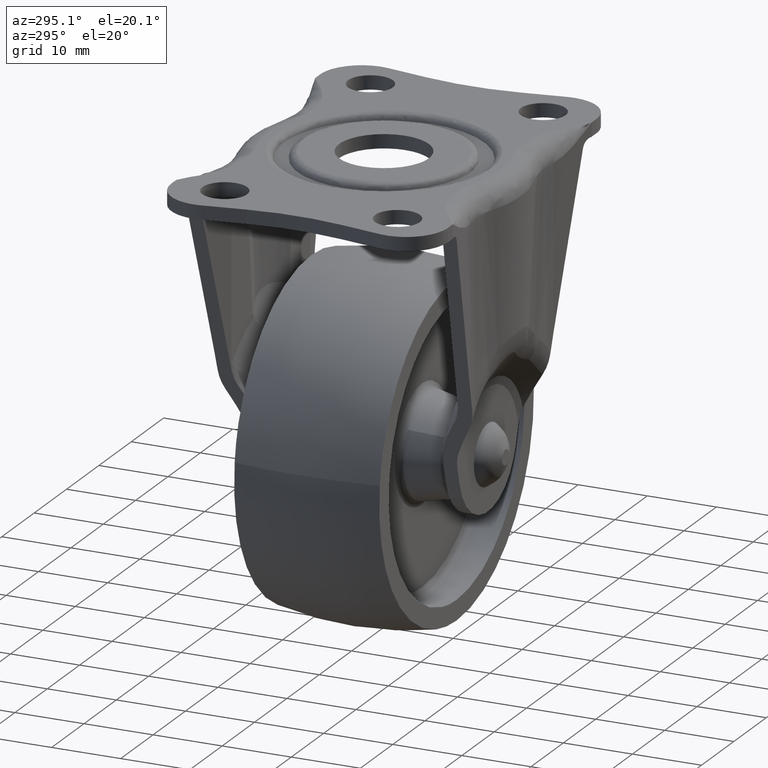
[diagram: clean part render]
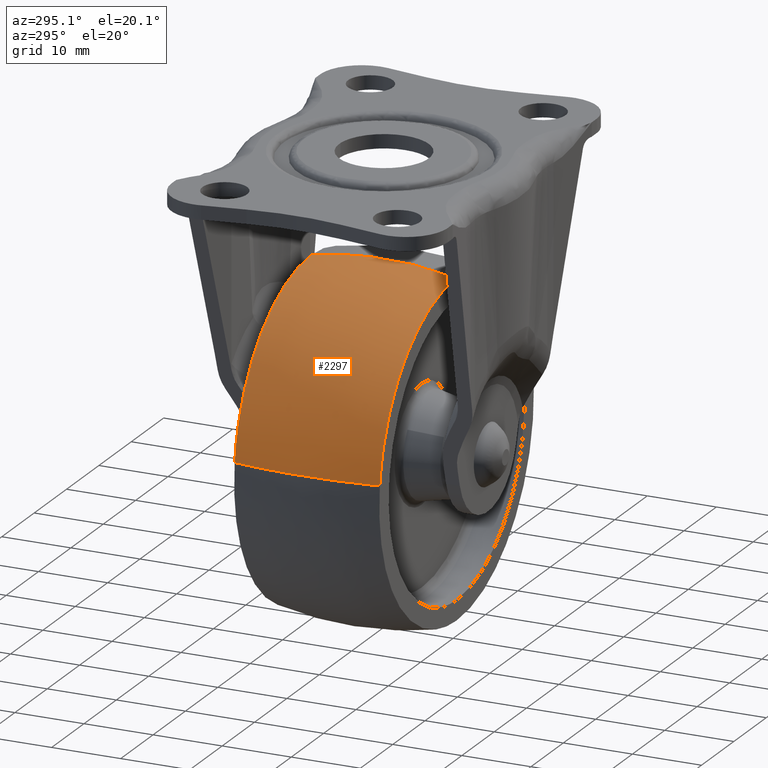
[diagram: same view with one face highlighted and labeled with its STEP entity id]
A machine part, auxiliary view. The second image highlights one B-rep face of the part: STEP entity #2297.
In plain terms, the highlighted face is a freeform B-spline surface patch.
Its self-contained STEP definition (entity closure, byte-faithful):
#2129=CARTESIAN_POINT('',(-23.725320137781459,-10.500002050025209,2.757843099754513));
#2130=VERTEX_POINT('',#2129);
#2148=CARTESIAN_POINT('',(-23.725319611020470,10.500004497779170,2.757843077978822));
#2149=VERTEX_POINT('',#2148);
#2150=CARTESIAN_POINT('',(-23.725320137781456,-10.500002050025213,2.757843099754514));
#2151=CARTESIAN_POINT('',(-24.832794219524438,-5.309194892421730,2.886577774797776));
#2152=CARTESIAN_POINT('',(-24.832794218380336,-7.992791E-015,2.886577784639975));
#2153=CARTESIAN_POINT('',(-24.832794217236238,5.309196158325869,2.886577794482175));
#2154=CARTESIAN_POINT('',(-23.725319611020470,10.500004497779173,2.757843077978822));
#2162=(BOUNDED_CURVE()B_SPLINE_CURVE(2,(#2150,#2151,#2152,#2153,#2154),.UNSPECIFIED.,.F.,.U.)B_SPLINE_CURVE_WITH_KNOTS((3,2,3),(0.396753655747786,0.500000000000000,0.603246368188836),.UNSPECIFIED.)CURVE()GEOMETRIC_REPRESENTATION_ITEM()RATIONAL_B_SPLINE_CURVE((0.914874605605101,0.930414079447641,0.956886118190660,0.930414073310366,0.914874598399761))REPRESENTATION_ITEM(''));
#2163=EDGE_CURVE('',#2130,#2149,#2162,.T.);
#2182=CARTESIAN_POINT('',(0.0,10.499988183043550,23.885071833391070));
#2183=VERTEX_POINT('',#2182);
#2199=CARTESIAN_POINT('',(0.0,-10.499985442855660,23.885072421953151));
#2200=VERTEX_POINT('',#2199);
#2201=CARTESIAN_POINT('',(0.0,-10.499985442855651,23.885072421953158));
#2202=CARTESIAN_POINT('',(0.0,-5.309186303697754,24.999999999999993));
#2203=CARTESIAN_POINT('',(0.0,0.0,25.0));
#2204=CARTESIAN_POINT('',(0.0,5.309187720839631,25.000000000000004));
#2205=CARTESIAN_POINT('',(0.0,10.499988183043543,23.885071833391073));
#2213=(BOUNDED_CURVE()B_SPLINE_CURVE(2,(#2201,#2202,#2203,#2204,#2205),.UNSPECIFIED.,.F.,.U.)B_SPLINE_CURVE_WITH_KNOTS((3,2,3),(0.396753818149599,0.500000000000000,0.603246208646736),.UNSPECIFIED.)CURVE()GEOMETRIC_REPRESENTATION_ITEM()RATIONAL_B_SPLINE_CURVE((0.956095649313844,0.972335268951588,1.0,0.972335261771532,0.956095640884239))REPRESENTATION_ITEM(''));
#2214=EDGE_CURVE('',#2200,#2183,#2213,.T.);
#2234=CARTESIAN_POINT('',(0.153417863439363,-11.553957465630440,23.646747752366782));
#2235=CARTESIAN_POINT('',(0.162197636061821,-5.856228273553618,24.999999999999996));
#2236=CARTESIAN_POINT('',(0.162197636061821,0.0,24.999999999999989));
#2237=CARTESIAN_POINT('',(0.162197636061821,5.856231443781028,25.0));
#2238=CARTESIAN_POINT('',(0.153417854062262,11.553963551000338,23.646746307046641));
#2239=CARTESIAN_POINT('',(0.076812143368140,-11.553957465630436,23.646747752366778));
#2240=CARTESIAN_POINT('',(0.081207936258858,-5.856228273553617,25.0));
#2241=CARTESIAN_POINT('',(0.081207936258858,0.0,24.999999999999996));
#2242=CARTESIAN_POINT('',(0.081207936258858,5.856231443781028,25.000000000000007));
#2243=CARTESIAN_POINT('',(0.076812138673281,11.553963551000338,23.646746307046641));
#2244=CARTESIAN_POINT('',(-21.057232625030807,-11.553957465630443,23.646747752366789));
#2245=CARTESIAN_POINT('',(-22.262292520673601,-5.856228273553620,24.999999999999996));
#2246=CARTESIAN_POINT('',(-22.262292520673586,0.0,24.999999999999996));
#2247=CARTESIAN_POINT('',(-22.262292520673586,5.856231443781029,25.0));
#2248=CARTESIAN_POINT('',(-21.057231337985211,11.553963551000331,23.646746307046634));
#2249=CARTESIAN_POINT('',(-23.497861553932648,-11.553957465630436,2.650590456183905));
#2250=CARTESIAN_POINT('',(-24.842593366333826,-5.856228273553616,2.802278017194361));
#2251=CARTESIAN_POINT('',(-24.842593366333819,0.0,2.802278017194361));
#2252=CARTESIAN_POINT('',(-24.842593366333826,5.856231443781027,2.802278017194362));
#2253=CARTESIAN_POINT('',(-23.497860117712634,11.553963551000328,2.650590294176349));
#2254=CARTESIAN_POINT('',(-23.507111461896098,-11.553957465630445,2.571015671063604));
#2255=CARTESIAN_POINT('',(-24.852372626530954,-5.856228273553617,2.718149339168928));
#2256=CARTESIAN_POINT('',(-24.852372626530951,0.0,2.718149339168928));
#2257=CARTESIAN_POINT('',(-24.852372626530947,5.856231443781028,2.718149339168928));
#2258=CARTESIAN_POINT('',(-23.507110025110713,11.553963551000331,2.571015513919764));
#2266=(BOUNDED_SURFACE()B_SPLINE_SURFACE(2,2,((#2234,#2239,#2244,#2249,#2254),(#2235,#2240,#2245,#2250,#2255),(#2236,#2241,#2246,#2251,#2256),(#2237,#2242,#2247,#2252,#2257),(#2238,#2243,#2248,#2253,#2258)),.UNSPECIFIED.,.F.,.F.,.U.)B_SPLINE_SURFACE_WITH_KNOTS((3,2,3),(3,1,1,3),(0.0,11.916560530529130,23.833127315710751),(0.0,0.190329405299531,38.256178313888441,38.446540721343723),.UNSPECIFIED.)GEOMETRIC_REPRESENTATION_ITEM()RATIONAL_B_SPLINE_SURFACE(((0.955532825416787,0.954248886266766,0.696177334001523,0.912957624912310,0.914036320806311),(0.972184144196683,0.970877830849238,0.708309068681325,0.928867019169197,0.929964512647874),(1.002694619889022,1.001347309944511,0.730538238691624,0.958018054782099,0.959149991373539),(0.972184128182631,0.970877814856704,0.708309057013887,0.928867003868674,0.929964497329274),(0.955532807937214,0.954248868810681,0.696177321266344,0.912957608211567,0.914036304085835)))REPRESENTATION_ITEM('')SURFACE());
#2267=CARTESIAN_POINT('',(0.0,-10.499985442855660,23.885072421953151));
#2268=CARTESIAN_POINT('',(-21.269481021860873,-10.499993746440436,23.885070853013058));
#2269=CARTESIAN_POINT('',(-23.725320137781463,-10.500002050025214,2.757843099754513));
#2277=(BOUNDED_CURVE()B_SPLINE_CURVE(2,(#2267,#2268,#2269),.UNSPECIFIED.,.F.,.U.)B_SPLINE_CURVE_WITH_KNOTS((3,3),(0.500000000000000,0.730000199404390),.UNSPECIFIED.)CURVE()GEOMETRIC_REPRESENTATION_ITEM()RATIONAL_B_SPLINE_CURVE((1.0,0.730538005074850,0.956886510667213))REPRESENTATION_ITEM(''));
#2278=EDGE_CURVE('',#2200,#2130,#2277,.T.);
#2279=ORIENTED_EDGE('',*,*,#2278,.F.);
#2280=ORIENTED_EDGE('',*,*,#2214,.T.);
#2281=CARTESIAN_POINT('',(0.0,10.499988183043550,23.885071833391070));
#2282=CARTESIAN_POINT('',(-21.269480725608318,10.499996340411363,23.885070528379551));
#2283=CARTESIAN_POINT('',(-23.725319611020463,10.500004497779173,2.757843077978822));
#2291=(BOUNDED_CURVE()B_SPLINE_CURVE(2,(#2281,#2282,#2283),.UNSPECIFIED.,.F.,.U.)B_SPLINE_CURVE_WITH_KNOTS((3,3),(0.500000000000000,0.730000199126834),.UNSPECIFIED.)CURVE()GEOMETRIC_REPRESENTATION_ITEM()RATIONAL_B_SPLINE_CURVE((1.0,0.730538005400026,0.956886510120916))REPRESENTATION_ITEM(''));
#2292=EDGE_CURVE('',#2183,#2149,#2291,.T.);
#2293=ORIENTED_EDGE('',*,*,#2292,.T.);
#2294=ORIENTED_EDGE('',*,*,#2163,.F.);
#2295=EDGE_LOOP('',(#2279,#2280,#2293,#2294));
#2296=FACE_OUTER_BOUND('',#2295,.T.);
#2297=ADVANCED_FACE('',(#2296),#2266,.T.);